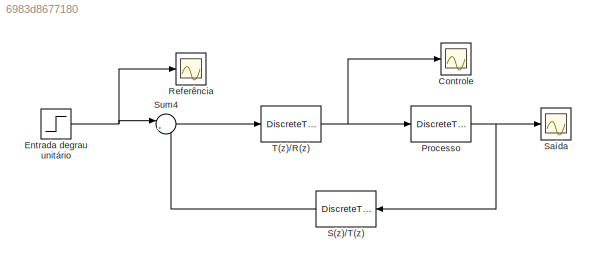
MODEL slx_6983d8677180
KIND model
CONFIG AbsTol = auto
CONFIG EnableMultiTasking = on
CONFIG FixedStep = 10/1000
CONFIG MaxStep = auto
CONFIG MinStep = auto
CONFIG RelTol = 1e-3
CONFIG SampleTimeConstraint = Unconstrained
CONFIG SolverName = FixedStepAuto
CONFIG StartTime = 0.0
CONFIG StopTime = 30
BLOCK [Scope] Controle
  Floating = off
  NumInputPorts = 1
  Ports = [1]
  ScopeSpecificationString = Simulink.scopes.TimeScopeBlockCfg('CurrentConfiguration', extmgr.ConfigurationSet(extmgr.Configuration('Core','General UI',true),extmgr.Configuration('Core','Source UI',true),extmgr.Configuration('Sources','WiredSimulink',true,'DataLogging',true,'DataLoggingVariableName','control','DataLoggingLimitDataPoints',true,'DataLoggingSaveFormat','Array','DataLoggingDecimation','1','DataLoggingDecimateData...<+1799ch>
BLOCK [Step] Entrada degrau unitário
  SampleTime = dt
BLOCK [DiscreteTransferFcn] Processo
  Denominator = Az
  InputPortMap = u0
  Numerator = Bz
  Ports = [1, 1]
BLOCK [Scope] Referência
  Floating = off
  NumInputPorts = 1
  Ports = [1]
  ScopeSpecificationString = Simulink.scopes.TimeScopeBlockCfg('CurrentConfiguration', extmgr.ConfigurationSet(extmgr.Configuration('Core','General UI',true),extmgr.Configuration('Core','Source UI',true),extmgr.Configuration('Sources','WiredSimulink',true,'DataLogging',true,'DataLoggingVariableName','reference','DataLoggingLimitDataPoints',true,'DataLoggingSaveFormat','Array','DataLoggingDecimation','1','DataLoggingDecimateDa...<+1820ch>
BLOCK [DiscreteTransferFcn] S(z)//T(z)
  Denominator = coeff_T
  InputPortMap = u0
  NameLocation = top
  Numerator = coeff_S
  Ports = [1, 1]
BLOCK [Scope] Saída
  Floating = off
  NumInputPorts = 1
  Ports = [1]
  ScopeSpecificationString = Simulink.scopes.TimeScopeBlockCfg('CurrentConfiguration', extmgr.ConfigurationSet(extmgr.Configuration('Core','General UI',true),extmgr.Configuration('Core','Source UI',true),extmgr.Configuration('Sources','WiredSimulink',true,'DataLogging',true,'DataLoggingVariableName','output','DataLoggingLimitDataPoints',true,'DataLoggingSaveFormat','Array','DataLoggingDecimation','1','DataLoggingDecimateData'...<+1802ch>
BLOCK [Sum] Sum4
  Inputs = |+-
  Ports = [2, 1]
BLOCK [DiscreteTransferFcn] T(z)//R(z)
  Denominator = coeff_R
  InputPortMap = u0
  Numerator = coeff_T
  Ports = [1, 1]
NET Entrada degrau unitário:1 -> Referência:1, Sum4:1
NET Processo:1 -> S(z)//T(z):1, Saída:1
LINE S(z)//T(z):1 -> Sum4:2
LINE Sum4:1 -> T(z)//R(z):1
NET T(z)//R(z):1 -> Controle:1, Processo:1
note: NET lines group one-source signal fan-out (src -> all destinations, sorted); 1:1 wires keep LINE
